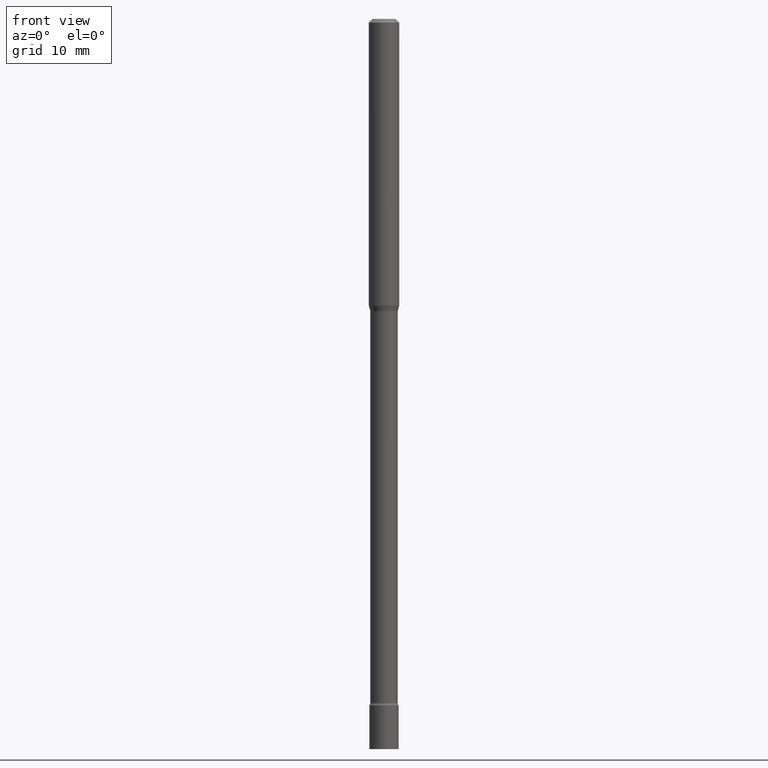
[diagram: clean part render]
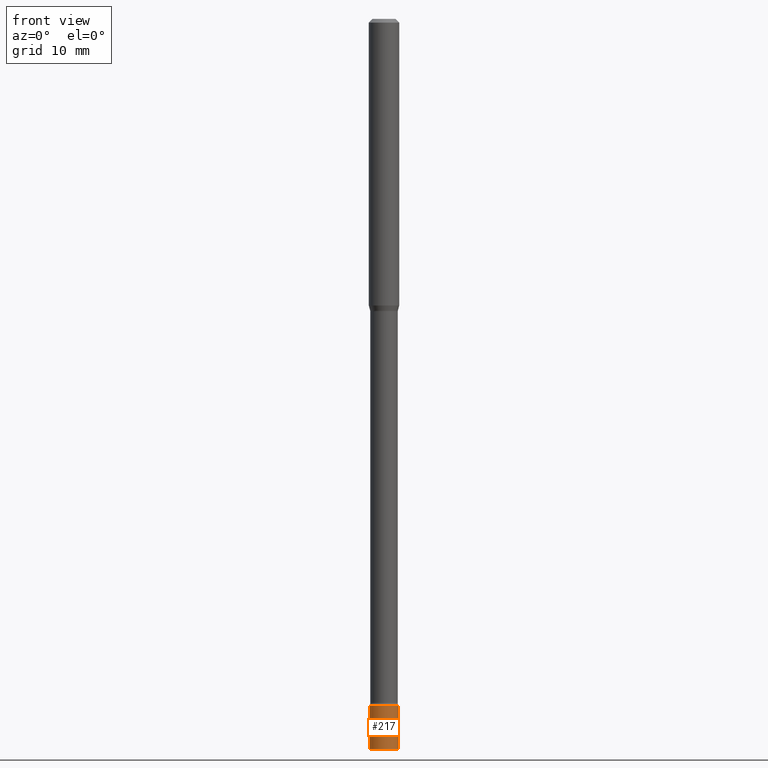
[diagram: same view with one face highlighted and labeled with its STEP entity id]
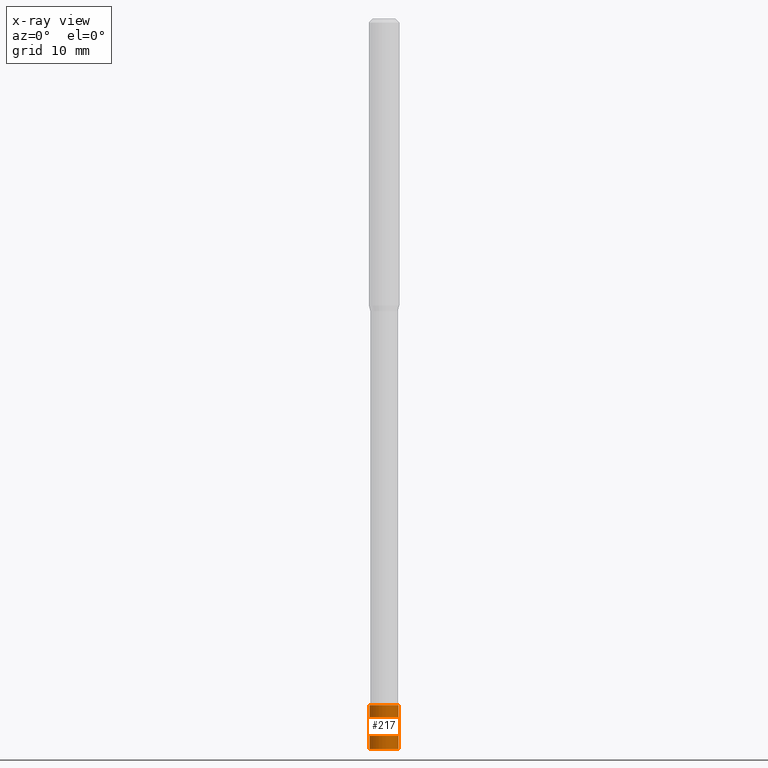
[diagram: x-ray of the same camera — body ghosted, the highlighted face saturated]
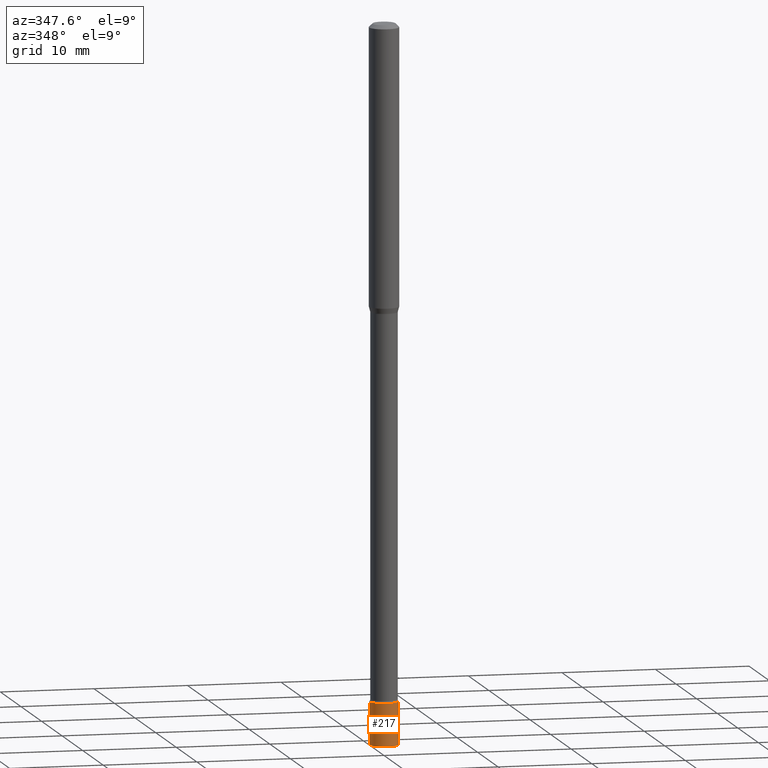
[diagram: same view with one face highlighted and labeled with its STEP entity id]
A machine part, front view. The second image highlights one B-rep face of the part: STEP entity #217.
The next image is the same camera in x-ray: the body ghosted, the highlighted face saturated — about 0% of this face is hidden behind the body in this view.
A second angle (auxiliary view) of the same face is appended — the face is thin or edge-on in the first view.
In plain terms, the highlighted cylindrical surface (edge-blend (fillet) strip) has radius 1.524 mm, axis along (-0, 0, 1).
Its self-contained STEP definition (entity closure, byte-faithful):
#1 = ORIENTED_EDGE ( 'NONE', *, *, #495, .F. ) ;
#23 = EDGE_CURVE ( 'NONE', #214, #250, #239, .T. ) ;
#34 = AXIS2_PLACEMENT_3D ( 'NONE', #309, #313, #153 ) ;
#40 = AXIS2_PLACEMENT_3D ( 'NONE', #177, #136, #454 ) ;
#41 = CARTESIAN_POINT ( 'NONE',  ( 0.05999999999999999778, -1.026495513619884646E-14, -2.819999999999999840 ) ) ;
#46 = DIRECTION ( 'NONE',  ( -2.445468806185136877E-29, 3.491481338843145188E-15, 1.000000000000000000 ) ) ;
#94 = ORIENTED_EDGE ( 'NONE', *, *, #291, .T. ) ;
#96 = VERTEX_POINT ( 'NONE', #484 ) ;
#121 = VECTOR ( 'NONE', #438, 39.37007874015748143 ) ;
#127 = DIRECTION ( 'NONE',  ( 1.000000000000000000, -6.982962677686268288E-15, 0.000000000000000000 ) ) ;
#128 = FACE_OUTER_BOUND ( 'NONE', #280, .T. ) ;
#136 = DIRECTION ( 'NONE',  ( -2.445468806185136597E-29, 3.491481338843145583E-15, 1.000000000000000000 ) ) ;
#153 = DIRECTION ( 'NONE',  ( 1.000000000000000000, -6.982962677686268288E-15, 0.000000000000000000 ) ) ;
#177 = CARTESIAN_POINT ( 'NONE',  ( 0.000000000000000000, 0.000000000000000000, 0.000000000000000000 ) ) ;
#208 = EDGE_CURVE ( 'NONE', #371, #250, #496, .T. ) ;
#214 = VERTEX_POINT ( 'NONE', #489 ) ;
#217 = ADVANCED_FACE ( 'NONE', ( #128 ), #292, .T. ) ;
#221 = AXIS2_PLACEMENT_3D ( 'NONE', #448, #329, #127 ) ;
#239 = CIRCLE ( 'NONE', #221, 0.05999999999999999778 ) ;
#241 = LINE ( 'NONE', #357, #121 ) ;
#250 = VERTEX_POINT ( 'NONE', #41 ) ;
#280 = EDGE_LOOP ( 'NONE', ( #1, #94, #456, #402 ) ) ;
#291 = EDGE_CURVE ( 'NONE', #96, #371, #447, .T. ) ;
#292 = CYLINDRICAL_SURFACE ( 'NONE', #40, 0.05999999999999999778 ) ;
#309 = CARTESIAN_POINT ( 'NONE',  ( 7.336406418555409790E-29, -1.047444401652943635E-14, -3.000000000000000444 ) ) ;
#313 = DIRECTION ( 'NONE',  ( -2.445468806185136597E-29, 3.491481338843145583E-15, 1.000000000000000000 ) ) ;
#329 = DIRECTION ( 'NONE',  ( -2.445468806185136597E-29, 3.491481338843145583E-15, 1.000000000000000000 ) ) ;
#357 = CARTESIAN_POINT ( 'NONE',  ( -0.05999999999999999778, 4.263256414560600957E-16, -2.951361054152943413E-30 ) ) ;
#371 = VERTEX_POINT ( 'NONE', #394 ) ;
#394 = CARTESIAN_POINT ( 'NONE',  ( 0.05999999999999999778, -1.089342177719061299E-14, -3.000000000000000444 ) ) ;
#402 = ORIENTED_EDGE ( 'NONE', *, *, #23, .F. ) ;
#415 = CARTESIAN_POINT ( 'NONE',  ( 0.05999999999999999778, -4.189777606611760421E-16, 2.925706065477561756E-30 ) ) ;
#438 = DIRECTION ( 'NONE',  ( -2.445468806185136877E-29, 3.491481338843145188E-15, 1.000000000000000000 ) ) ;
#447 = CIRCLE ( 'NONE', #34, 0.05999999999999999778 ) ;
#448 = CARTESIAN_POINT ( 'NONE',  ( 6.896222033442085337E-29, -9.845977375537671403E-15, -2.819999999999999840 ) ) ;
#454 = DIRECTION ( 'NONE',  ( 1.000000000000000000, -6.982962677686267499E-15, 4.876176775795936353E-29 ) ) ;
#456 = ORIENTED_EDGE ( 'NONE', *, *, #208, .T. ) ;
#475 = VECTOR ( 'NONE', #46, 39.37007874015748143 ) ;
#484 = CARTESIAN_POINT ( 'NONE',  ( -0.05999999999999999778, -9.733885054577494177E-15, -3.000000000000000444 ) ) ;
#489 = CARTESIAN_POINT ( 'NONE',  ( -0.05999999999999999778, -9.733885054577494177E-15, -2.819999999999999840 ) ) ;
#495 = EDGE_CURVE ( 'NONE', #96, #214, #241, .T. ) ;
#496 = LINE ( 'NONE', #415, #475 ) ;